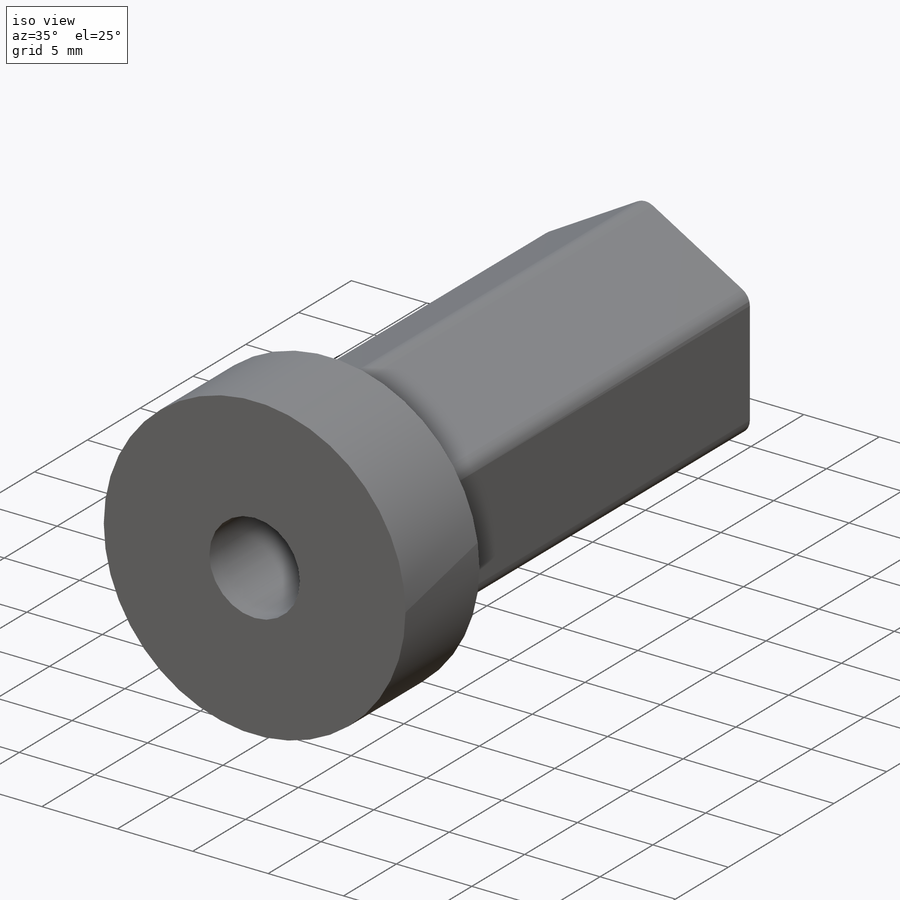
[diagram: iso view]
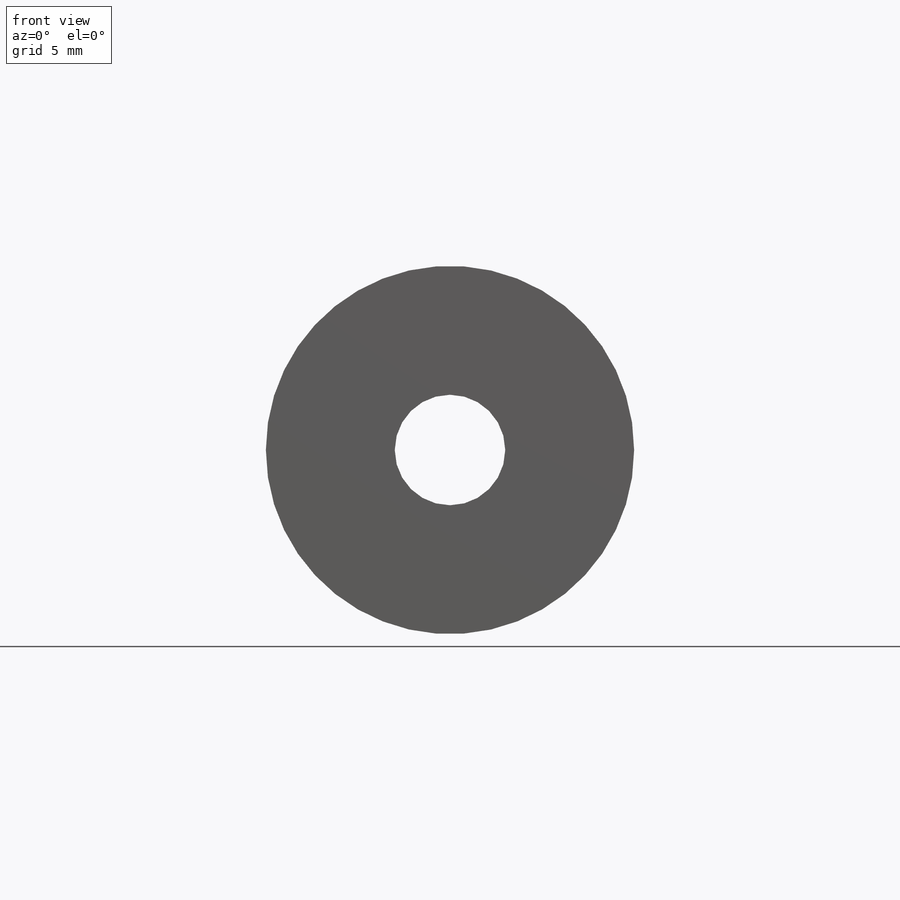
[diagram: front view]
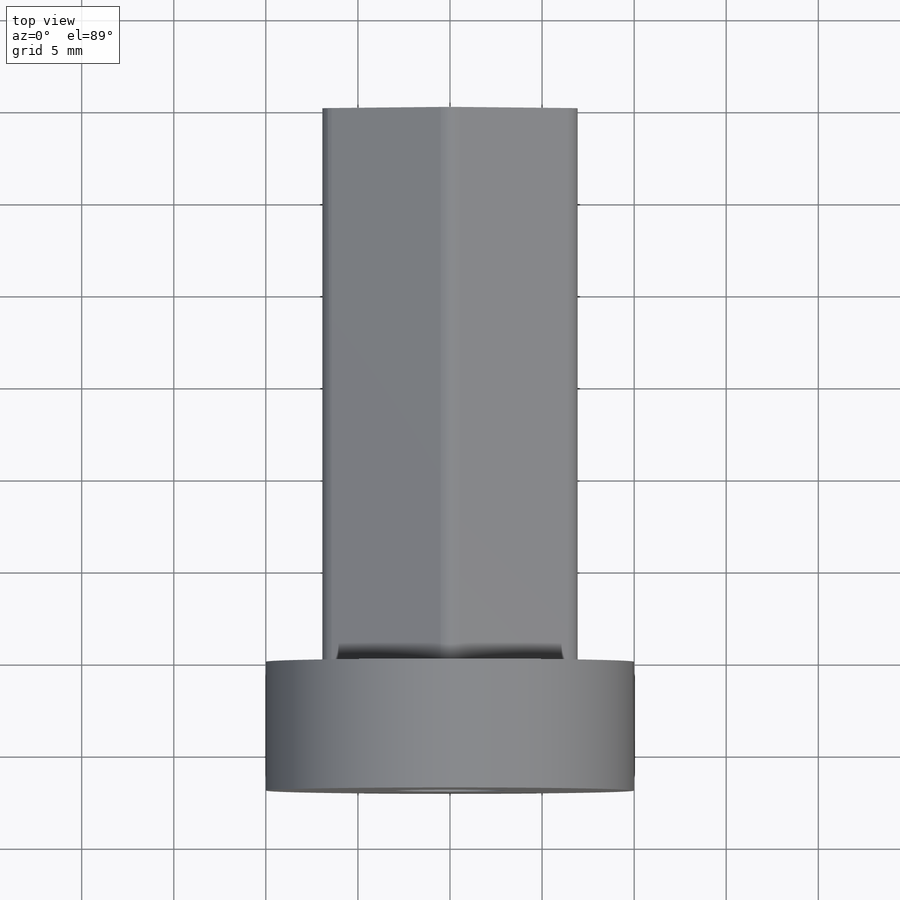
[diagram: top view]
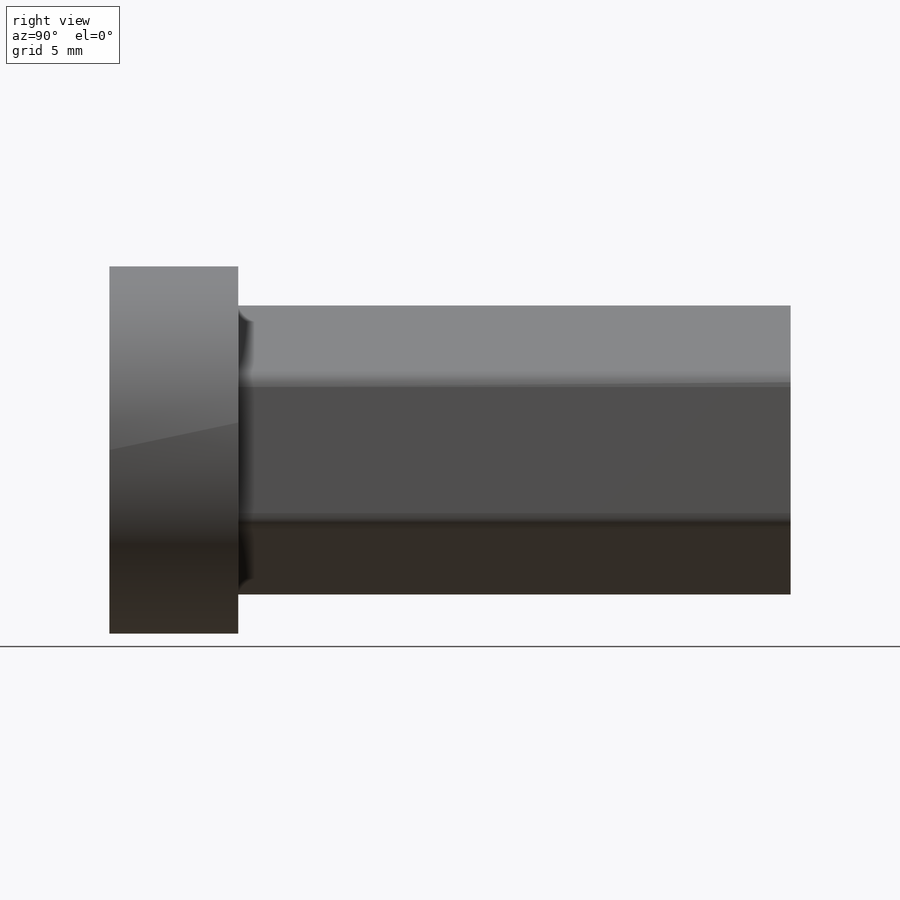
[diagram: right view]
SOLIDWORKS PART (.sldprt)
format: sldprt  version: not decoded by parser v0  size: 179,712 bytes
history: native  units: mm
features: sketch x2, material x1, revolve x1, cut_extrude x1, fillet x1 (+12 scaffold rows collapsed)
feature tree (18):
  scaffold x12  (default folders/planes/origin — collapsed)
  material  "Material <not specified>"
  sketch  "Sketch2"  dims[D1=6.0mm D2=5.0mm D3=7.0mm D4=30.0mm D5=7.0mm D6=25.0mm]
  revolve  "Revolve1"  Angle=360deg
  sketch  "Sketch3"  dims[D1=4.5mm]
  cut_extrude  "Cut-Extrude1"  Depth=30mm
  fillet  "Fillet1"  Radius=1mm
decode coverage: 5 of 5 modeling features carry decoded parameters
note: suppression state not decoded; provenance and decode notes live in map.json
